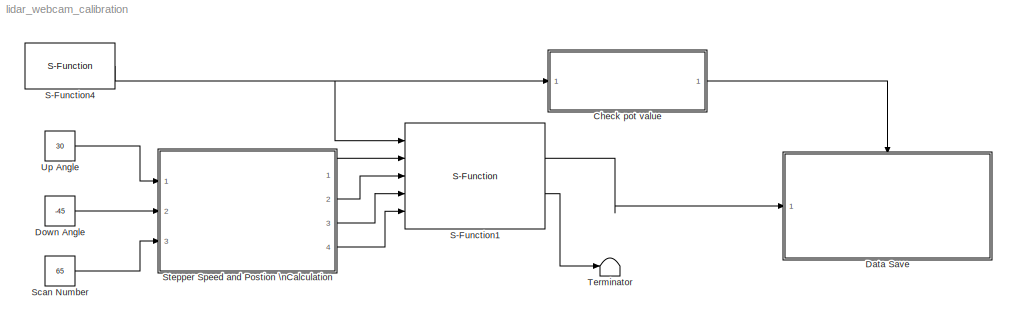
MODEL lidar_webcam_calibration
KIND model
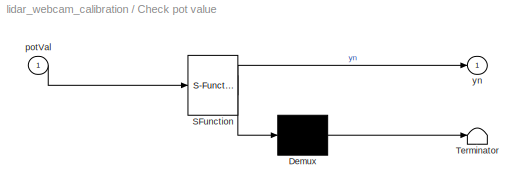
BLOCK [SubSystem] Check pot value
  FunctionWithSeparateData = off
  MaskDescription = Embedded MATLAB block
  MaskDisplay = disp('check_pot_val');
  MaskHideContents = off
  MaskIconFrame = on
  MaskIconOpaque = off
  MaskIconRotate = none
  MaskIconUnits = autoscale
  MaskPortRotate = default
  MaskSelfModifiable = on
  MaskType = Stateflow
  MinAlgLoopOccurrences = off
  Opaque = off
  PermitHierarchicalResolution = ExplicitOnly
  Ports = [1, 1]
  PropExecContextOutsideSubsystem = off
  RTWSystemCode = Auto
  RequestExecContextInheritance = off
BLOCK [Demux] Check pot value/ Demux 
  Outputs = 1
  Ports = [1, 1]
BLOCK [S-Function] Check pot value/ SFunction 
  EnableBusSupport = on
  FunctionName = sf_sfun
  PortCounts = [1 2]
  Ports = [1, 2]
  Tag = Stateflow S-Function lidar_webcam_calibration 2
BLOCK [Terminator] Check pot value/ Terminator 
BLOCK [Inport] Check pot value/potVal
  IconDisplay = Port number
  OutDataType = sfix(16)
  OutScaling = 2^0
BLOCK [Outport] Check pot value/yn
  IconDisplay = Port number
  OutDataType = sfix(16)
  OutScaling = 2^0
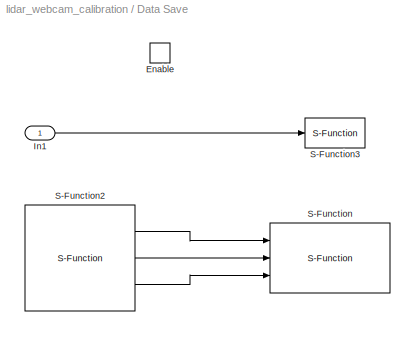
BLOCK [SubSystem] Data Save
  FunctionWithSeparateData = off
  MaskHideContents = off
  MinAlgLoopOccurrences = off
  Opaque = off
  Ports = [1, 0, 1]
  PropExecContextOutsideSubsystem = off
  RTWSystemCode = Auto
  RequestExecContextInheritance = off
  TreatAsAtomicUnit = on
BLOCK [EnablePort] Data Save/Enable
  Ports = []
BLOCK [Inport] Data Save/In1
  IconDisplay = Port number
  OutDataType = fixdt(1, 16)
  OutScaling = 2^0
BLOCK [S-Function] Data Save/S-Function
  EnableBusSupport = off
  FunctionName = videoExport_v2
  Ports = [3]
BLOCK [S-Function] Data Save/S-Function2
  EnableBusSupport = off
  FunctionName = WebcamTest_v2
  Ports = [0, 3]
BLOCK [S-Function] Data Save/S-Function3
  EnableBusSupport = off
  FunctionName = lidarExport
  Ports = [1]
BLOCK [Constant] Down Angle
  OutDataType = fixdt(1, 16)
  OutScaling = 2^0
  Value = -45
BLOCK [S-Function] S-Function1
  EnableBusSupport = off
  FunctionName = TT_lidar_zero_test_v1
  Ports = [5, 2]
BLOCK [S-Function] S-Function4
  EnableBusSupport = off
  FunctionName = TT_pot_readerV1
  Ports = [0, 1]
BLOCK [Constant] Scan Number
  OutDataType = fixdt(1, 16)
  OutScaling = 2^0
  Value = 65
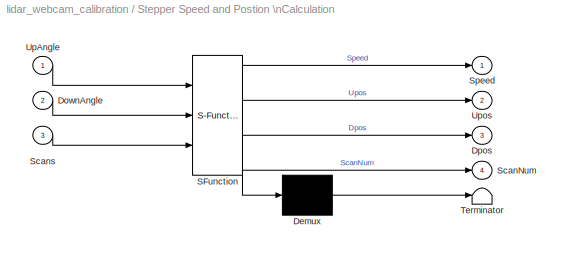
BLOCK [SubSystem] Stepper Speed and Postion \nCalculation
  FunctionWithSeparateData = off
  MaskDescription = Embedded MATLAB block
  MaskDisplay = disp('stepper_calc');
  MaskHideContents = off
  MaskIconFrame = on
  MaskIconOpaque = off
  MaskIconRotate = none
  MaskIconUnits = autoscale
  MaskPortRotate = default
  MaskSelfModifiable = on
  MaskType = Stateflow
  MinAlgLoopOccurrences = off
  Opaque = off
  PermitHierarchicalResolution = ExplicitOnly
  Ports = [3, 4]
  PropExecContextOutsideSubsystem = off
  RTWSystemCode = Auto
  RequestExecContextInheritance = off
BLOCK [Demux] Stepper Speed and Postion \nCalculation/ Demux 
  Outputs = 1
  Ports = [1, 1]
BLOCK [S-Function] Stepper Speed and Postion \nCalculation/ SFunction 
  EnableBusSupport = on
  FunctionName = sf_sfun
  PortCounts = [3 5]
  Ports = [3, 5]
  Tag = Stateflow S-Function lidar_webcam_calibration 1
BLOCK [Terminator] Stepper Speed and Postion \nCalculation/ Terminator 
BLOCK [Inport] Stepper Speed and Postion \nCalculation/DownAngle
  IconDisplay = Port number
  Port = 2
BLOCK [Outport] Stepper Speed and Postion \nCalculation/Dpos
  IconDisplay = Port number
  Port = 3
BLOCK [Outport] Stepper Speed and Postion \nCalculation/ScanNum
  IconDisplay = Port number
  Port = 4
BLOCK [Inport] Stepper Speed and Postion \nCalculation/Scans
  IconDisplay = Port number
  Port = 3
BLOCK [Outport] Stepper Speed and Postion \nCalculation/Speed
  IconDisplay = Port number
  OutDataType = sfix(16)
  OutScaling = 2^0
BLOCK [Inport] Stepper Speed and Postion \nCalculation/UpAngle
  IconDisplay = Port number
  OutDataType = sfix(16)
  OutScaling = 2^0
BLOCK [Outport] Stepper Speed and Postion \nCalculation/Upos
  IconDisplay = Port number
  Port = 2
BLOCK [Terminator] Terminator
BLOCK [Constant] Up Angle
  OutDataType = fixdt(1, 16)
  OutScaling = 2^0
  Value = 30
LINE Check pot value/ Demux :1 -> Check pot value/ Terminator :1
LINE Check pot value/ SFunction :1 -> Check pot value/ Demux :1
LINE Check pot value/ SFunction :2 -> Check pot value/yn:1
LINE Check pot value/potVal:1 -> Check pot value/ SFunction :1
LINE Check pot value:1 -> Data Save:enable
LINE Data Save/In1:1 -> Data Save/S-Function3:1
LINE Data Save/S-Function2:1 -> Data Save/S-Function:1
LINE Data Save/S-Function2:2 -> Data Save/S-Function:2
LINE Data Save/S-Function2:3 -> Data Save/S-Function:3
LINE Down Angle:1 -> Stepper Speed and Postion \nCalculation:2
LINE S-Function1:1 -> Data Save:1
LINE S-Function1:2 -> Terminator:1
NET S-Function4:1 -> Check pot value:1, S-Function1:1
LINE Scan Number:1 -> Stepper Speed and Postion \nCalculation:3
LINE Stepper Speed and Postion \nCalculation/ Demux :1 -> Stepper Speed and Postion \nCalculation/ Terminator :1
LINE Stepper Speed and Postion \nCalculation/ SFunction :1 -> Stepper Speed and Postion \nCalculation/ Demux :1
LINE Stepper Speed and Postion \nCalculation/ SFunction :2 -> Stepper Speed and Postion \nCalculation/Speed:1
LINE Stepper Speed and Postion \nCalculation/ SFunction :3 -> Stepper Speed and Postion \nCalculation/Upos:1
LINE Stepper Speed and Postion \nCalculation/ SFunction :4 -> Stepper Speed and Postion \nCalculation/Dpos:1
LINE Stepper Speed and Postion \nCalculation/ SFunction :5 -> Stepper Speed and Postion \nCalculation/ScanNum:1
LINE Stepper Speed and Postion \nCalculation/DownAngle:1 -> Stepper Speed and Postion \nCalculation/ SFunction :2
LINE Stepper Speed and Postion \nCalculation/Scans:1 -> Stepper Speed and Postion \nCalculation/ SFunction :3
LINE Stepper Speed and Postion \nCalculation/UpAngle:1 -> Stepper Speed and Postion \nCalculation/ SFunction :1
LINE Stepper Speed and Postion \nCalculation:1 -> S-Function1:2
LINE Stepper Speed and Postion \nCalculation:2 -> S-Function1:3
LINE Stepper Speed and Postion \nCalculation:3 -> S-Function1:4
LINE Stepper Speed and Postion \nCalculation:4 -> S-Function1:5
LINE Up Angle:1 -> Stepper Speed and Postion \nCalculation:1
note: NET lines group one-source signal fan-out (src -> all destinations, sorted); 1:1 wires keep LINE
CHART Stepper Speed and Postion \nCalculation states=1 transitions=1
  STATE_LABEL 'eML_blk_kernel()'
CHART Check pot value states=1 transitions=1
  STATE_LABEL 'eML_blk_kernel()'
